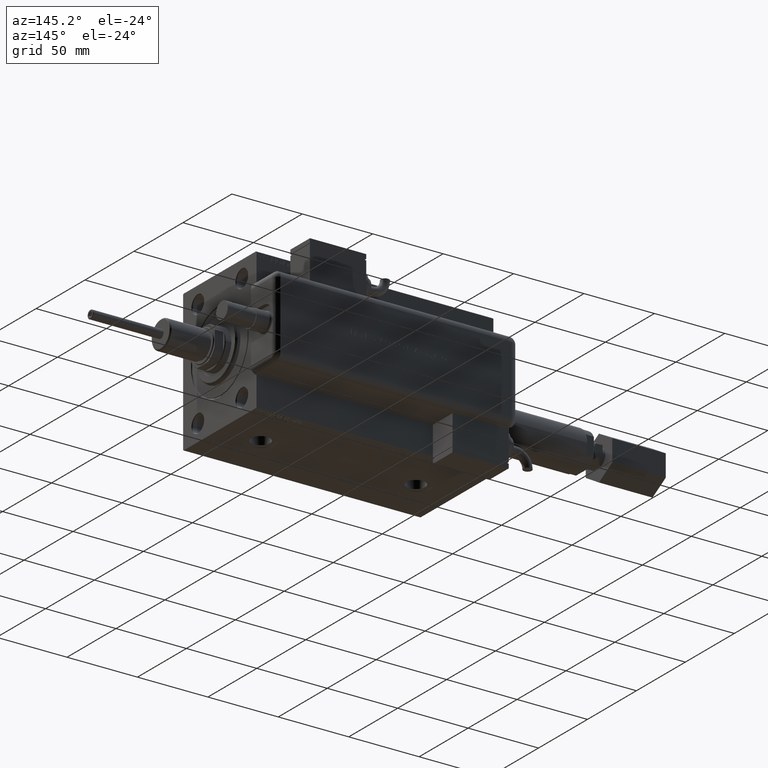
[diagram: clean part render]
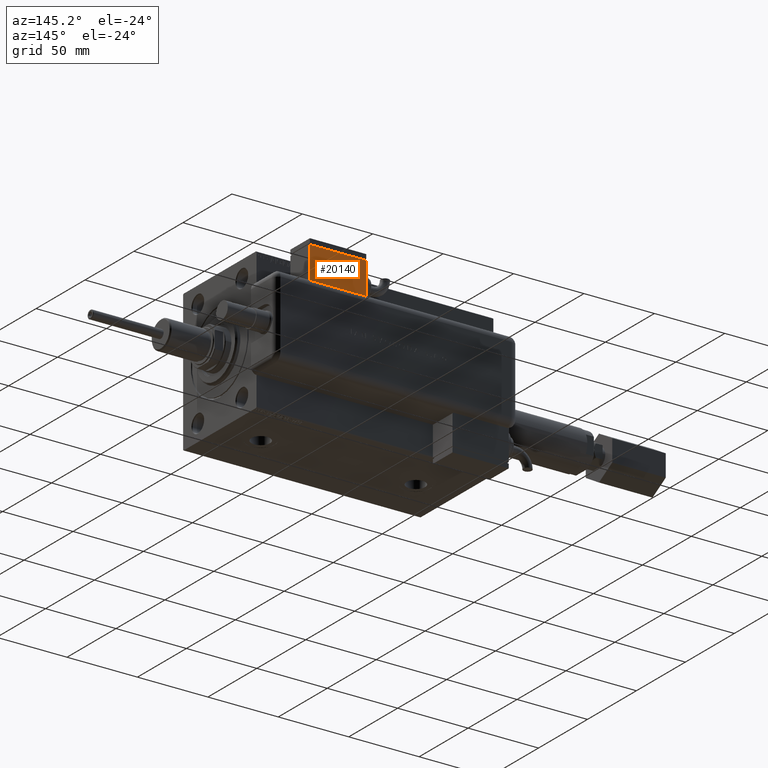
[diagram: same view with one face highlighted and labeled with its STEP entity id]
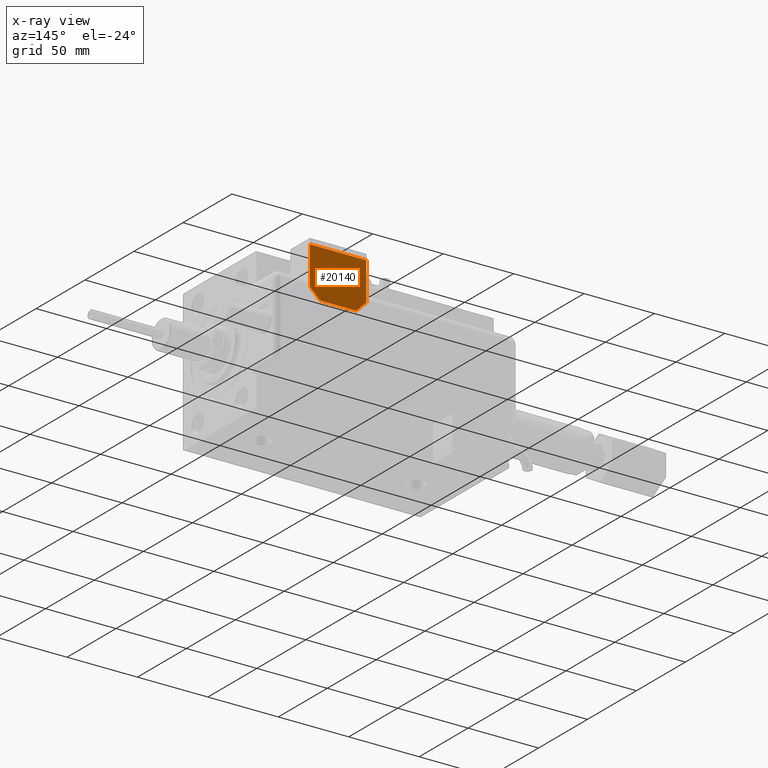
[diagram: x-ray of the same camera — body ghosted, the highlighted face saturated]
A machine part, auxiliary view. The second image highlights one B-rep face of the part: STEP entity #20140.
The next image is the same camera in x-ray: the body ghosted, the highlighted face saturated — about 0% of this face is hidden behind the body in this view.
In plain terms, the highlighted planar face has unit normal (0, 1, 0).
Its self-contained STEP definition (entity closure, byte-faithful):
#3549 = FACE_OUTER_BOUND ( 'NONE', #50515, .T. ) ;
#6699 = VECTOR ( 'NONE', #39911, 1000.000000000000114 ) ;
#6743 = CARTESIAN_POINT ( 'NONE',  ( -10.00000000000004086, 20.50000000000009592, 10.00000000000000000 ) ) ;
#7444 = EDGE_CURVE ( 'NONE', #9883, #38343, #27066, .T. ) ;
#7580 = CARTESIAN_POINT ( 'NONE',  ( 0.000000000000000000, 0.000000000000000000, 10.00000000000000000 ) ) ;
#8498 = VECTOR ( 'NONE', #49877, 1000.000000000000000 ) ;
#9883 = VERTEX_POINT ( 'NONE', #11531 ) ;
#11531 = CARTESIAN_POINT ( 'NONE',  ( -19.99999999999993960, 13.49999999999986500, 10.00000000000000000 ) ) ;
#12243 = PLANE ( 'NONE',  #36249 ) ;
#15040 = VERTEX_POINT ( 'NONE', #49498 ) ;
#20140 = ADVANCED_FACE ( 'NONE', ( #3549 ), #12243, .T. ) ;
#20393 = ORIENTED_EDGE ( 'NONE', *, *, #33874, .T. ) ;
#20990 = CARTESIAN_POINT ( 'NONE',  ( 9.999999999999984013, 23.50000000000009592, 10.00000000000000000 ) ) ;
#21578 = ORIENTED_EDGE ( 'NONE', *, *, #56692, .T. ) ;
#21949 = CARTESIAN_POINT ( 'NONE',  ( 20.00000000000005684, 13.50000000000003730, 10.00000000000000000 ) ) ;
#24128 = EDGE_CURVE ( 'NONE', #33618, #42991, #26578, .T. ) ;
#25585 = VERTEX_POINT ( 'NONE', #37817 ) ;
#26525 = DIRECTION ( 'NONE',  ( 0.000000000000000000, 0.000000000000000000, 1.000000000000000000 ) ) ;
#26578 = LINE ( 'NONE', #20990, #6699 ) ;
#27066 = LINE ( 'NONE', #60584, #50009 ) ;
#28670 = ORIENTED_EDGE ( 'NONE', *, *, #49301, .T. ) ;
#29886 = ORIENTED_EDGE ( 'NONE', *, *, #55776, .T. ) ;
#29896 = ORIENTED_EDGE ( 'NONE', *, *, #24128, .T. ) ;
#30164 = CARTESIAN_POINT ( 'NONE',  ( 20.00000000000005329, -13.49999999999996092, 10.00000000000000000 ) ) ;
#31727 = VECTOR ( 'NONE', #58167, 1000.000000000000000 ) ;
#31758 = CARTESIAN_POINT ( 'NONE',  ( -19.99999999999994316, -13.49999999999996092, 10.00000000000000000 ) ) ;
#33618 = VERTEX_POINT ( 'NONE', #21949 ) ;
#33874 = EDGE_CURVE ( 'NONE', #53924, #33618, #35169, .T. ) ;
#35169 = LINE ( 'NONE', #40439, #31727 ) ;
#36249 = AXIS2_PLACEMENT_3D ( 'NONE', #7580, #26525, #45451 ) ;
#36711 = DIRECTION ( 'NONE',  ( -1.284980352575421081E-16, -1.000000000000000000, -0.000000000000000000 ) ) ;
#37384 = VECTOR ( 'NONE', #36711, 1000.000000000000000 ) ;
#37537 = CARTESIAN_POINT ( 'NONE',  ( -19.99999999999993960, 13.49999999999986500, 10.00000000000000000 ) ) ;
#37817 = CARTESIAN_POINT ( 'NONE',  ( -12.99999999999994138, 20.50000000000009592, 10.00000000000000000 ) ) ;
#38343 = VERTEX_POINT ( 'NONE', #53781 ) ;
#39911 = DIRECTION ( 'NONE',  ( -0.7071067811865479058, 0.7071067811865470176, -0.000000000000000000 ) ) ;
#40439 = CARTESIAN_POINT ( 'NONE',  ( 20.00000000000005329, -13.49999999999996092, 10.00000000000000000 ) ) ;
#42991 = VERTEX_POINT ( 'NONE', #48743 ) ;
#45309 = EDGE_CURVE ( 'NONE', #42991, #25585, #55683, .T. ) ;
#45451 = DIRECTION ( 'NONE',  ( 1.000000000000000000, 0.000000000000000000, -0.000000000000000000 ) ) ;
#45690 = DIRECTION ( 'NONE',  ( -1.284980352575421081E-16, -1.000000000000000000, -0.000000000000000000 ) ) ;
#46835 = VECTOR ( 'NONE', #54242, 1000.000000000000000 ) ;
#46859 = DIRECTION ( 'NONE',  ( -0.7071067811865356934, -0.7071067811865593411, -0.000000000000000000 ) ) ;
#48743 = CARTESIAN_POINT ( 'NONE',  ( 12.99999999999999112, 20.50000000000009592, 10.00000000000000000 ) ) ;
#49301 = EDGE_CURVE ( 'NONE', #25585, #9883, #52141, .T. ) ;
#49498 = CARTESIAN_POINT ( 'NONE',  ( -19.99999999999994316, -13.49999999999996092, 10.00000000000000000 ) ) ;
#49877 = DIRECTION ( 'NONE',  ( 1.000000000000000000, 0.000000000000000000, 0.000000000000000000 ) ) ;
#50009 = VECTOR ( 'NONE', #45690, 1000.000000000000000 ) ;
#50515 = EDGE_LOOP ( 'NONE', ( #29896, #57471, #28670, #54537, #21578, #29886, #20393 ) ) ;
#52141 = LINE ( 'NONE', #37537, #60896 ) ;
#53781 = CARTESIAN_POINT ( 'NONE',  ( -19.99999999999993960, 2.569960705150834076E-15, 10.00000000000000000 ) ) ;
#53924 = VERTEX_POINT ( 'NONE', #30164 ) ;
#54242 = DIRECTION ( 'NONE',  ( -1.000000000000000000, 0.000000000000000000, 0.000000000000000000 ) ) ;
#54537 = ORIENTED_EDGE ( 'NONE', *, *, #7444, .T. ) ;
#55150 = CARTESIAN_POINT ( 'NONE',  ( -19.99999999999994316, -13.49999999999996092, 10.00000000000000000 ) ) ;
#55458 = LINE ( 'NONE', #55150, #8498 ) ;
#55683 = LINE ( 'NONE', #6743, #46835 ) ;
#55776 = EDGE_CURVE ( 'NONE', #15040, #53924, #55458, .T. ) ;
#56692 = EDGE_CURVE ( 'NONE', #38343, #15040, #60625, .T. ) ;
#57471 = ORIENTED_EDGE ( 'NONE', *, *, #45309, .T. ) ;
#58167 = DIRECTION ( 'NONE',  ( 1.284980352575412699E-16, 1.000000000000000000, 0.000000000000000000 ) ) ;
#60584 = CARTESIAN_POINT ( 'NONE',  ( -19.99999999999994316, -13.49999999999996092, 10.00000000000000000 ) ) ;
#60625 = LINE ( 'NONE', #31758, #37384 ) ;
#60896 = VECTOR ( 'NONE', #46859, 1000.000000000000000 ) ;